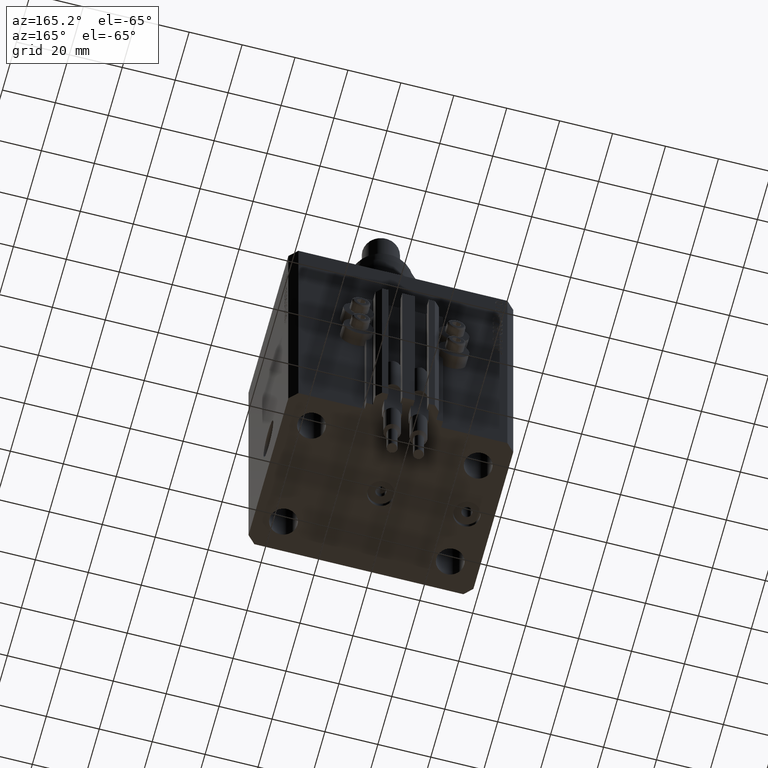
[diagram: clean part render]
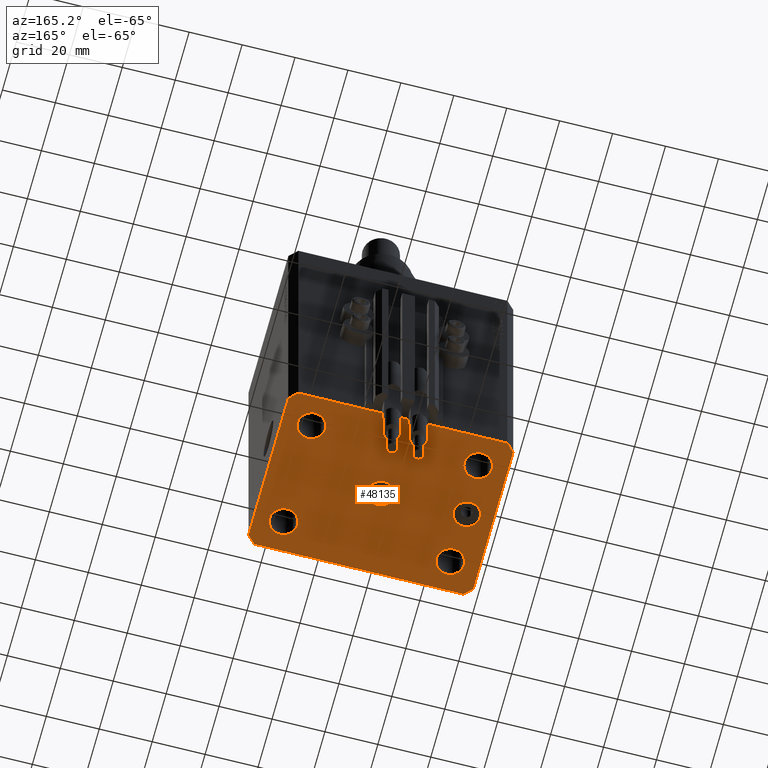
[diagram: same view with one face highlighted and labeled with its STEP entity id]
A machine part, auxiliary view. The second image highlights one B-rep face of the part: STEP entity #48135.
In plain terms, the highlighted planar face has unit normal (0, 0, 1).
Its self-contained STEP definition (entity closure, byte-faithful):
#336 = DIRECTION ( 'NONE',  ( -1.000000000000000000, 0.000000000000000000, 0.000000000000000000 ) ) ;
#573 = LINE ( 'NONE', #4440, #50779 ) ;
#928 = PLANE ( 'NONE',  #44438 ) ;
#1191 = CARTESIAN_POINT ( 'NONE',  ( 39.50000000000000711, -31.50000000000000000, -123.0000000000000000 ) ) ;
#1414 = VERTEX_POINT ( 'NONE', #12092 ) ;
#1583 = ORIENTED_EDGE ( 'NONE', *, *, #36581, .F. ) ;
#1871 = VERTEX_POINT ( 'NONE', #43117 ) ;
#2074 = VECTOR ( 'NONE', #32900, 1000.000000000000000 ) ;
#2535 = EDGE_CURVE ( 'NONE', #45664, #41113, #45265, .T. ) ;
#3320 = DIRECTION ( 'NONE',  ( -1.000000000000000000, 0.000000000000000000, 0.000000000000000000 ) ) ;
#4363 = CARTESIAN_POINT ( 'NONE',  ( -36.74999999999999289, -20.00000000000000355, -123.0000000000000000 ) ) ;
#4440 = CARTESIAN_POINT ( 'NONE',  ( -42.50000000000000000, -28.50000000000000000, -123.0000000000000000 ) ) ;
#4715 = CARTESIAN_POINT ( 'NONE',  ( -32.50000000000000000, 0.000000000000000000, -123.0000000000000000 ) ) ;
#4798 = FACE_BOUND ( 'NONE', #28430, .T. ) ;
#4992 = CARTESIAN_POINT ( 'NONE',  ( 39.50000000000000711, -31.50000000000000000, -123.0000000000000000 ) ) ;
#5086 = EDGE_CURVE ( 'NONE', #31036, #34176, #45833, .T. ) ;
#5109 = CARTESIAN_POINT ( 'NONE',  ( 42.50000000000000711, -28.50000000000000355, -123.0000000000000000 ) ) ;
#5623 = AXIS2_PLACEMENT_3D ( 'NONE', #42700, #26971, #50924 ) ;
#5825 = DIRECTION ( 'NONE',  ( 1.000000000000000000, 0.000000000000000000, 0.000000000000000000 ) ) ;
#5925 = ORIENTED_EDGE ( 'NONE', *, *, #17043, .F. ) ;
#5981 = CIRCLE ( 'NONE', #42241, 5.249999999999997335 ) ;
#6053 = CARTESIAN_POINT ( 'NONE',  ( -26.24999999999999289, -20.00000000000000355, -123.0000000000000000 ) ) ;
#6109 = ORIENTED_EDGE ( 'NONE', *, *, #2535, .F. ) ;
#6411 = EDGE_CURVE ( 'NONE', #34176, #31036, #5981, .T. ) ;
#6581 = DIRECTION ( 'NONE',  ( 0.000000000000000000, 0.000000000000000000, -1.000000000000000000 ) ) ;
#6763 = VERTEX_POINT ( 'NONE', #36218 ) ;
#6976 = CARTESIAN_POINT ( 'NONE',  ( 5.000000000000000000, 6.123233995736765296E-16, -123.0000000000000000 ) ) ;
#7177 = VERTEX_POINT ( 'NONE', #6976 ) ;
#7251 = CARTESIAN_POINT ( 'NONE',  ( -31.49999999999999289, -20.00000000000000355, -123.0000000000000000 ) ) ;
#7921 = DIRECTION ( 'NONE',  ( 0.000000000000000000, 0.000000000000000000, -1.000000000000000000 ) ) ;
#8195 = ORIENTED_EDGE ( 'NONE', *, *, #36941, .F. ) ;
#8278 = EDGE_CURVE ( 'NONE', #41281, #38597, #25712, .T. ) ;
#8678 = VERTEX_POINT ( 'NONE', #43772 ) ;
#8694 = EDGE_CURVE ( 'NONE', #8678, #39381, #36547, .T. ) ;
#8770 = CARTESIAN_POINT ( 'NONE',  ( 31.49999999999999289, -20.00000000000000355, -123.0000000000000000 ) ) ;
#8936 = FACE_BOUND ( 'NONE', #44278, .T. ) ;
#9110 = EDGE_CURVE ( 'NONE', #14021, #35236, #45509, .T. ) ;
#9208 = CIRCLE ( 'NONE', #41299, 5.000000000000000000 ) ;
#9356 = CARTESIAN_POINT ( 'NONE',  ( -36.75000000000000000, 19.99999999999999645, -123.0000000000000000 ) ) ;
#10950 = CIRCLE ( 'NONE', #30703, 5.249999999999997335 ) ;
#11442 = EDGE_LOOP ( 'NONE', ( #8195, #44915 ) ) ;
#12092 = CARTESIAN_POINT ( 'NONE',  ( 36.74999999999999289, -20.00000000000000355, -123.0000000000000000 ) ) ;
#12218 = EDGE_LOOP ( 'NONE', ( #50072, #48789 ) ) ;
#12297 = DIRECTION ( 'NONE',  ( 1.000000000000000000, 0.000000000000000000, -0.000000000000000000 ) ) ;
#12557 = FACE_OUTER_BOUND ( 'NONE', #25921, .T. ) ;
#12576 = VERTEX_POINT ( 'NONE', #21743 ) ;
#12873 = LINE ( 'NONE', #5109, #33621 ) ;
#13087 = ORIENTED_EDGE ( 'NONE', *, *, #17797, .F. ) ;
#13158 = DIRECTION ( 'NONE',  ( -0.000000000000000000, -0.000000000000000000, -1.000000000000000000 ) ) ;
#13357 = VECTOR ( 'NONE', #20062, 1000.000000000000000 ) ;
#14021 = VERTEX_POINT ( 'NONE', #4363 ) ;
#14554 = AXIS2_PLACEMENT_3D ( 'NONE', #45494, #21527, #49606 ) ;
#15202 = VECTOR ( 'NONE', #26368, 1000.000000000000000 ) ;
#15246 = CIRCLE ( 'NONE', #37476, 5.250000000000000888 ) ;
#15658 = FACE_BOUND ( 'NONE', #37854, .T. ) ;
#15806 = AXIS2_PLACEMENT_3D ( 'NONE', #43088, #13158, #47444 ) ;
#15998 = ORIENTED_EDGE ( 'NONE', *, *, #45732, .F. ) ;
#16161 = FACE_BOUND ( 'NONE', #25238, .T. ) ;
#16352 = CARTESIAN_POINT ( 'NONE',  ( 42.50000000000051870, 28.49999999999995381, -123.0000000000000000 ) ) ;
#16361 = EDGE_CURVE ( 'NONE', #6763, #43468, #43759, .T. ) ;
#16803 = CARTESIAN_POINT ( 'NONE',  ( 36.75000000000000000, 19.99999999999999289, -123.0000000000000000 ) ) ;
#17043 = EDGE_CURVE ( 'NONE', #44909, #1414, #29459, .T. ) ;
#17797 = EDGE_CURVE ( 'NONE', #38597, #41281, #22078, .T. ) ;
#18022 = ORIENTED_EDGE ( 'NONE', *, *, #47677, .F. ) ;
#18353 = DIRECTION ( 'NONE',  ( 1.000000000000000000, 0.000000000000000000, 0.000000000000000000 ) ) ;
#18456 = DIRECTION ( 'NONE',  ( -0.000000000000000000, -0.000000000000000000, -1.000000000000000000 ) ) ;
#18591 = VERTEX_POINT ( 'NONE', #24749 ) ;
#18782 = ORIENTED_EDGE ( 'NONE', *, *, #42268, .F. ) ;
#18904 = ORIENTED_EDGE ( 'NONE', *, *, #49929, .F. ) ;
#19682 = CARTESIAN_POINT ( 'NONE',  ( 42.50000000000051870, 28.49999999999995381, -123.0000000000000000 ) ) ;
#19759 = CARTESIAN_POINT ( 'NONE',  ( -39.50000000000000711, 31.50000000000000000, -123.0000000000000000 ) ) ;
#20037 = FACE_BOUND ( 'NONE', #11442, .T. ) ;
#20062 = DIRECTION ( 'NONE',  ( -1.000000000000000000, 0.000000000000000000, 0.000000000000000000 ) ) ;
#20124 = DIRECTION ( 'NONE',  ( 1.000000000000000000, 0.000000000000000000, 0.000000000000000000 ) ) ;
#20738 = DIRECTION ( 'NONE',  ( 0.7071067811865483499, 0.7071067811865466846, 0.000000000000000000 ) ) ;
#20769 = CARTESIAN_POINT ( 'NONE',  ( -42.50000000000000000, -28.50000000000000000, -123.0000000000000000 ) ) ;
#21120 = CARTESIAN_POINT ( 'NONE',  ( -31.49999999999999289, -20.00000000000000355, -123.0000000000000000 ) ) ;
#21267 = ORIENTED_EDGE ( 'NONE', *, *, #40787, .F. ) ;
#21438 = AXIS2_PLACEMENT_3D ( 'NONE', #45777, #6581, #22305 ) ;
#21527 = DIRECTION ( 'NONE',  ( -0.000000000000000000, -0.000000000000000000, -1.000000000000000000 ) ) ;
#21743 = CARTESIAN_POINT ( 'NONE',  ( -5.000000000000000000, 0.000000000000000000, -123.0000000000000000 ) ) ;
#22078 = CIRCLE ( 'NONE', #5623, 5.250000000000000888 ) ;
#22305 = DIRECTION ( 'NONE',  ( -1.000000000000000000, 0.000000000000000000, 0.000000000000000000 ) ) ;
#23036 = EDGE_CURVE ( 'NONE', #27421, #41648, #12873, .T. ) ;
#23505 = LINE ( 'NONE', #50332, #15202 ) ;
#23639 = DIRECTION ( 'NONE',  ( -1.000000000000000000, 0.000000000000000000, 0.000000000000000000 ) ) ;
#24085 = AXIS2_PLACEMENT_3D ( 'NONE', #7251, #26342, #18353 ) ;
#24749 = CARTESIAN_POINT ( 'NONE',  ( -37.50000000000000000, 0.000000000000000000, -123.0000000000000000 ) ) ;
#25025 = DIRECTION ( 'NONE',  ( -0.000000000000000000, -0.000000000000000000, -1.000000000000000000 ) ) ;
#25238 = EDGE_LOOP ( 'NONE', ( #1583, #5925 ) ) ;
#25712 = CIRCLE ( 'NONE', #15806, 5.250000000000000888 ) ;
#25746 = DIRECTION ( 'NONE',  ( 1.000000000000000000, 0.000000000000000000, 0.000000000000000000 ) ) ;
#25921 = EDGE_LOOP ( 'NONE', ( #49159, #18022, #46094, #15998, #6109, #36280, #33602, #21267 ) ) ;
#26342 = DIRECTION ( 'NONE',  ( -0.000000000000000000, -0.000000000000000000, -1.000000000000000000 ) ) ;
#26368 = DIRECTION ( 'NONE',  ( -0.7071067811865471286, -0.7071067811865479058, 0.000000000000000000 ) ) ;
#26807 = CARTESIAN_POINT ( 'NONE',  ( 0.000000000000000000, 0.000000000000000000, -123.0000000000000000 ) ) ;
#26971 = DIRECTION ( 'NONE',  ( -0.000000000000000000, -0.000000000000000000, -1.000000000000000000 ) ) ;
#27421 = VERTEX_POINT ( 'NONE', #33412 ) ;
#27688 = DIRECTION ( 'NONE',  ( 0.000000000000000000, 0.000000000000000000, -1.000000000000000000 ) ) ;
#28028 = CARTESIAN_POINT ( 'NONE',  ( 0.000000000000000000, 0.000000000000000000, -123.0000000000000000 ) ) ;
#28161 = EDGE_CURVE ( 'NONE', #18591, #1871, #43659, .T. ) ;
#28430 = EDGE_LOOP ( 'NONE', ( #18782, #37304 ) ) ;
#28650 = CARTESIAN_POINT ( 'NONE',  ( 26.24999999999999645, -20.00000000000000355, -123.0000000000000000 ) ) ;
#29459 = CIRCLE ( 'NONE', #32760, 5.249999999999997335 ) ;
#29501 = CARTESIAN_POINT ( 'NONE',  ( -39.50000000000000711, -31.50000000000000000, -123.0000000000000000 ) ) ;
#29651 = CIRCLE ( 'NONE', #21438, 4.999999999999997335 ) ;
#29973 = ORIENTED_EDGE ( 'NONE', *, *, #8278, .F. ) ;
#30703 = AXIS2_PLACEMENT_3D ( 'NONE', #36629, #25025, #40231 ) ;
#30765 = EDGE_CURVE ( 'NONE', #7177, #12576, #9208, .T. ) ;
#31036 = VERTEX_POINT ( 'NONE', #16803 ) ;
#31705 = DIRECTION ( 'NONE',  ( 8.886653596232072440E-15, 1.000000000000000000, 0.000000000000000000 ) ) ;
#32052 = LINE ( 'NONE', #19682, #45177 ) ;
#32760 = AXIS2_PLACEMENT_3D ( 'NONE', #8770, #43333, #20124 ) ;
#32900 = DIRECTION ( 'NONE',  ( 1.000000000000000000, 0.000000000000000000, 0.000000000000000000 ) ) ;
#33412 = CARTESIAN_POINT ( 'NONE',  ( 42.50000000000000711, -28.50000000000000355, -123.0000000000000000 ) ) ;
#33602 = ORIENTED_EDGE ( 'NONE', *, *, #16361, .F. ) ;
#33621 = VECTOR ( 'NONE', #31705, 1000.000000000000000 ) ;
#34176 = VERTEX_POINT ( 'NONE', #41109 ) ;
#34433 = CARTESIAN_POINT ( 'NONE',  ( -26.25000000000000000, 19.99999999999999645, -123.0000000000000000 ) ) ;
#35236 = VERTEX_POINT ( 'NONE', #6053 ) ;
#35659 = DIRECTION ( 'NONE',  ( 0.7071067811865471286, -0.7071067811865479058, 0.000000000000000000 ) ) ;
#36019 = DIRECTION ( 'NONE',  ( 0.000000000000000000, 0.000000000000000000, 1.000000000000000000 ) ) ;
#36029 = DIRECTION ( 'NONE',  ( 0.000000000000000000, -1.000000000000000000, 0.000000000000000000 ) ) ;
#36218 = CARTESIAN_POINT ( 'NONE',  ( -42.50000000000000000, 28.50000000000000000, -123.0000000000000000 ) ) ;
#36280 = ORIENTED_EDGE ( 'NONE', *, *, #46597, .F. ) ;
#36292 = CARTESIAN_POINT ( 'NONE',  ( 39.50000000000056843, 31.50000000000000000, -123.0000000000000000 ) ) ;
#36547 = LINE ( 'NONE', #36292, #13357 ) ;
#36581 = EDGE_CURVE ( 'NONE', #1414, #44909, #10950, .T. ) ;
#36629 = CARTESIAN_POINT ( 'NONE',  ( 31.49999999999999289, -20.00000000000000355, -123.0000000000000000 ) ) ;
#36941 = EDGE_CURVE ( 'NONE', #12576, #7177, #43074, .T. ) ;
#37304 = ORIENTED_EDGE ( 'NONE', *, *, #9110, .F. ) ;
#37476 = AXIS2_PLACEMENT_3D ( 'NONE', #21120, #45335, #25746 ) ;
#37854 = EDGE_LOOP ( 'NONE', ( #29973, #13087 ) ) ;
#38597 = VERTEX_POINT ( 'NONE', #9356 ) ;
#39366 = FACE_BOUND ( 'NONE', #12218, .T. ) ;
#39381 = VERTEX_POINT ( 'NONE', #19759 ) ;
#39744 = AXIS2_PLACEMENT_3D ( 'NONE', #26807, #42540, #3320 ) ;
#39883 = CARTESIAN_POINT ( 'NONE',  ( -42.50000000000000000, 28.50000000000000000, -123.0000000000000000 ) ) ;
#40231 = DIRECTION ( 'NONE',  ( 1.000000000000000000, 0.000000000000000000, 0.000000000000000000 ) ) ;
#40319 = LINE ( 'NONE', #4992, #49931 ) ;
#40787 = EDGE_CURVE ( 'NONE', #39381, #6763, #23505, .T. ) ;
#41109 = CARTESIAN_POINT ( 'NONE',  ( 26.25000000000000355, 19.99999999999999289, -123.0000000000000000 ) ) ;
#41113 = VERTEX_POINT ( 'NONE', #1191 ) ;
#41281 = VERTEX_POINT ( 'NONE', #34433 ) ;
#41299 = AXIS2_PLACEMENT_3D ( 'NONE', #47106, #7921, #23639 ) ;
#41648 = VERTEX_POINT ( 'NONE', #16352 ) ;
#42241 = AXIS2_PLACEMENT_3D ( 'NONE', #49392, #18456, #5825 ) ;
#42268 = EDGE_CURVE ( 'NONE', #35236, #14021, #15246, .T. ) ;
#42540 = DIRECTION ( 'NONE',  ( 0.000000000000000000, 0.000000000000000000, -1.000000000000000000 ) ) ;
#42700 = CARTESIAN_POINT ( 'NONE',  ( -31.50000000000000000, 19.99999999999999645, -123.0000000000000000 ) ) ;
#42966 = ORIENTED_EDGE ( 'NONE', *, *, #28161, .F. ) ;
#43074 = CIRCLE ( 'NONE', #39744, 5.000000000000000000 ) ;
#43088 = CARTESIAN_POINT ( 'NONE',  ( -31.50000000000000000, 19.99999999999999645, -123.0000000000000000 ) ) ;
#43117 = CARTESIAN_POINT ( 'NONE',  ( -27.50000000000000355, 6.123233995736762338E-16, -123.0000000000000000 ) ) ;
#43333 = DIRECTION ( 'NONE',  ( -0.000000000000000000, -0.000000000000000000, -1.000000000000000000 ) ) ;
#43468 = VERTEX_POINT ( 'NONE', #20769 ) ;
#43659 = CIRCLE ( 'NONE', #45311, 4.999999999999997335 ) ;
#43759 = LINE ( 'NONE', #39883, #45893 ) ;
#43772 = CARTESIAN_POINT ( 'NONE',  ( 39.50000000000056843, 31.50000000000000000, -123.0000000000000000 ) ) ;
#43905 = DIRECTION ( 'NONE',  ( -0.7071067811865356934, 0.7071067811865594521, 0.000000000000000000 ) ) ;
#44278 = EDGE_LOOP ( 'NONE', ( #42966, #18904 ) ) ;
#44438 = AXIS2_PLACEMENT_3D ( 'NONE', #28028, #36019, #12297 ) ;
#44909 = VERTEX_POINT ( 'NONE', #28650 ) ;
#44915 = ORIENTED_EDGE ( 'NONE', *, *, #30765, .F. ) ;
#45177 = VECTOR ( 'NONE', #43905, 1000.000000000000114 ) ;
#45265 = LINE ( 'NONE', #48369, #2074 ) ;
#45311 = AXIS2_PLACEMENT_3D ( 'NONE', #4715, #27688, #336 ) ;
#45335 = DIRECTION ( 'NONE',  ( -0.000000000000000000, -0.000000000000000000, -1.000000000000000000 ) ) ;
#45494 = CARTESIAN_POINT ( 'NONE',  ( 31.50000000000000000, 19.99999999999999289, -123.0000000000000000 ) ) ;
#45509 = CIRCLE ( 'NONE', #24085, 5.250000000000000888 ) ;
#45664 = VERTEX_POINT ( 'NONE', #29501 ) ;
#45732 = EDGE_CURVE ( 'NONE', #41113, #27421, #40319, .T. ) ;
#45777 = CARTESIAN_POINT ( 'NONE',  ( -32.50000000000000000, 0.000000000000000000, -123.0000000000000000 ) ) ;
#45833 = CIRCLE ( 'NONE', #14554, 5.249999999999997335 ) ;
#45893 = VECTOR ( 'NONE', #36029, 1000.000000000000000 ) ;
#46094 = ORIENTED_EDGE ( 'NONE', *, *, #23036, .F. ) ;
#46597 = EDGE_CURVE ( 'NONE', #43468, #45664, #573, .T. ) ;
#47106 = CARTESIAN_POINT ( 'NONE',  ( 0.000000000000000000, 0.000000000000000000, -123.0000000000000000 ) ) ;
#47444 = DIRECTION ( 'NONE',  ( 1.000000000000000000, 0.000000000000000000, 0.000000000000000000 ) ) ;
#47677 = EDGE_CURVE ( 'NONE', #41648, #8678, #32052, .T. ) ;
#48135 = ADVANCED_FACE ( 'NONE', ( #20037, #8936, #4798, #16161, #39366, #15658, #12557 ), #928, .F. ) ;
#48369 = CARTESIAN_POINT ( 'NONE',  ( -39.50000000000000711, -31.50000000000000000, -123.0000000000000000 ) ) ;
#48789 = ORIENTED_EDGE ( 'NONE', *, *, #6411, .F. ) ;
#49159 = ORIENTED_EDGE ( 'NONE', *, *, #8694, .F. ) ;
#49392 = CARTESIAN_POINT ( 'NONE',  ( 31.50000000000000000, 19.99999999999999289, -123.0000000000000000 ) ) ;
#49606 = DIRECTION ( 'NONE',  ( 1.000000000000000000, 0.000000000000000000, 0.000000000000000000 ) ) ;
#49929 = EDGE_CURVE ( 'NONE', #1871, #18591, #29651, .T. ) ;
#49931 = VECTOR ( 'NONE', #20738, 1000.000000000000000 ) ;
#50072 = ORIENTED_EDGE ( 'NONE', *, *, #5086, .F. ) ;
#50332 = CARTESIAN_POINT ( 'NONE',  ( -39.50000000000000711, 31.50000000000000000, -123.0000000000000000 ) ) ;
#50779 = VECTOR ( 'NONE', #35659, 1000.000000000000000 ) ;
#50924 = DIRECTION ( 'NONE',  ( 1.000000000000000000, 0.000000000000000000, 0.000000000000000000 ) ) ;